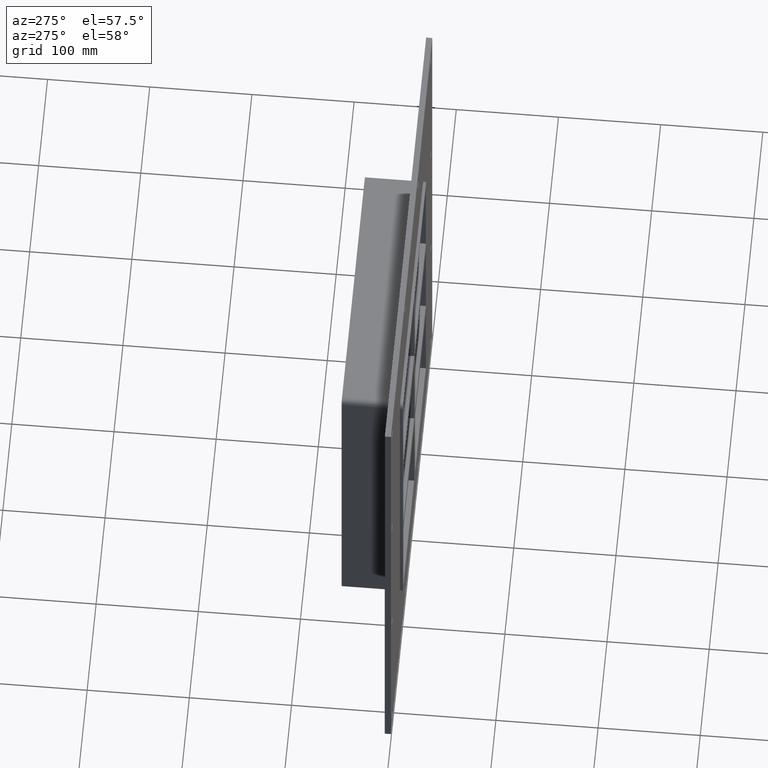
[diagram: clean part render]
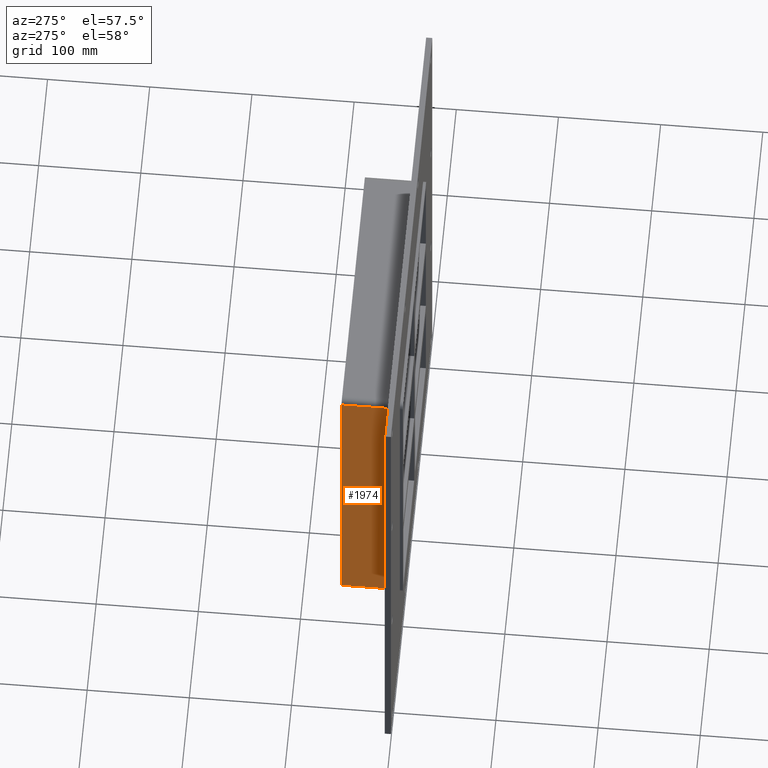
[diagram: same view with one face highlighted and labeled with its STEP entity id]
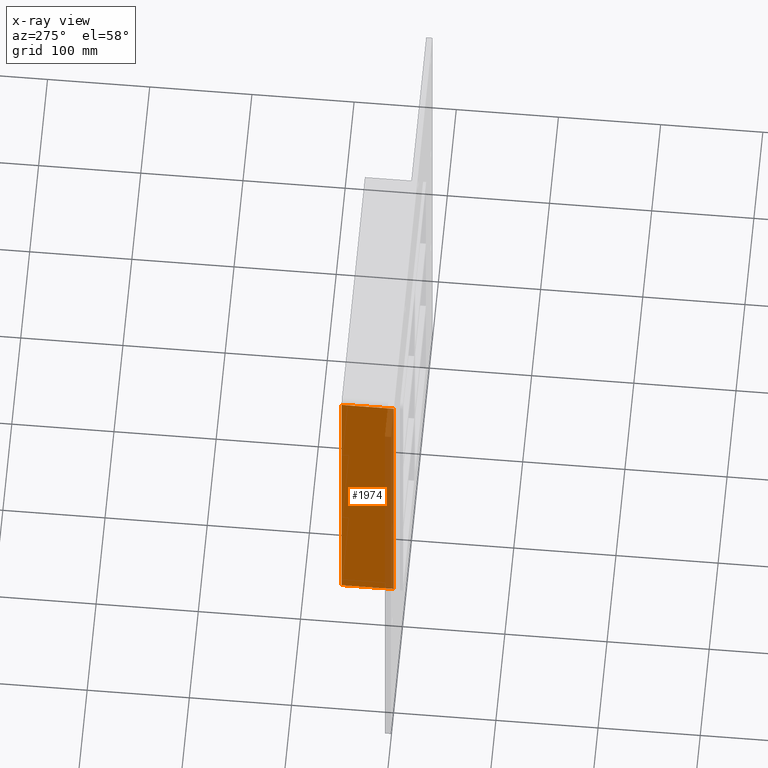
[diagram: x-ray of the same camera — body ghosted, the highlighted face saturated]
A machine part, auxiliary view. The second image highlights one B-rep face of the part: STEP entity #1974.
The next image is the same camera in x-ray: the body ghosted, the highlighted face saturated — about 17% of this face is hidden behind the body in this view.
In plain terms, the highlighted planar face has unit normal (-1, 0, 0).
Its self-contained STEP definition (entity closure, byte-faithful):
#969=CARTESIAN_POINT('',(-131.50000000000003,57.0,-163.49999999999997));
#970=VERTEX_POINT('',#969);
#978=CARTESIAN_POINT('',(-131.50000000000003,57.0,163.50000000000006));
#979=VERTEX_POINT('',#978);
#980=CARTESIAN_POINT('',(-131.50000000000003,57.0,-163.5));
#981=DIRECTION('',(0.0,0.0,1.0));
#982=VECTOR('',#981,327.00000000000006);
#983=LINE('',#980,#982);
#984=EDGE_CURVE('',#970,#979,#983,.T.);
#1320=CARTESIAN_POINT('',(-131.50000000000003,6.000000000000001,-163.49999999999997));
#1321=VERTEX_POINT('',#1320);
#1371=CARTESIAN_POINT('',(-131.50000000000003,6.000000000000001,163.50000000000006));
#1372=VERTEX_POINT('',#1371);
#1380=CARTESIAN_POINT('',(-131.50000000000003,6.000000000000001,-163.5));
#1381=DIRECTION('',(0.0,0.0,1.0));
#1382=VECTOR('',#1381,327.00000000000006);
#1383=LINE('',#1380,#1382);
#1384=EDGE_CURVE('',#1321,#1372,#1383,.T.);
#1947=CARTESIAN_POINT('',(-131.50000000000003,6.000000000000001,-163.49999999999997));
#1948=DIRECTION('',(0.0,1.0,0.0));
#1949=VECTOR('',#1948,51.0);
#1950=LINE('',#1947,#1949);
#1951=EDGE_CURVE('',#1321,#970,#1950,.T.);
#1958=CARTESIAN_POINT('',(-131.50000000000003,0.0,-169.5));
#1959=DIRECTION('',(-1.0,0.0,0.0));
#1960=DIRECTION('',(0.0,0.0,1.0));
#1961=AXIS2_PLACEMENT_3D('',#1958,#1959,#1960);
#1962=PLANE('',#1961);
#1963=ORIENTED_EDGE('',*,*,#1384,.T.);
#1964=CARTESIAN_POINT('',(-131.50000000000003,57.0,163.50000000000006));
#1965=DIRECTION('',(0.0,-1.0,0.0));
#1966=VECTOR('',#1965,51.0);
#1967=LINE('',#1964,#1966);
#1968=EDGE_CURVE('',#979,#1372,#1967,.T.);
#1969=ORIENTED_EDGE('',*,*,#1968,.F.);
#1970=ORIENTED_EDGE('',*,*,#984,.F.);
#1971=ORIENTED_EDGE('',*,*,#1951,.F.);
#1972=EDGE_LOOP('',(#1963,#1969,#1970,#1971));
#1973=FACE_OUTER_BOUND('',#1972,.T.);
#1974=ADVANCED_FACE('',(#1973),#1962,.T.);